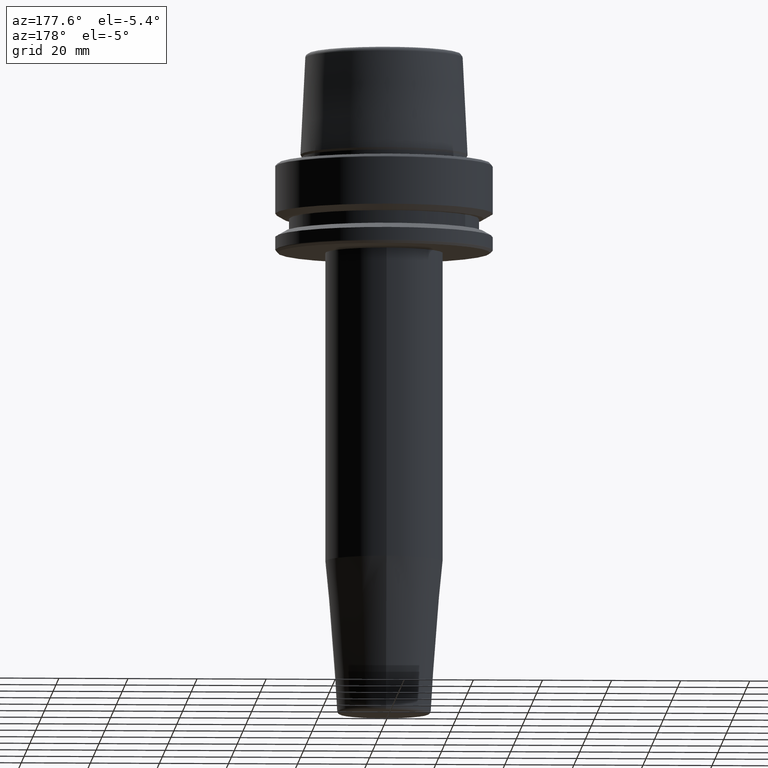
[diagram: clean part render]
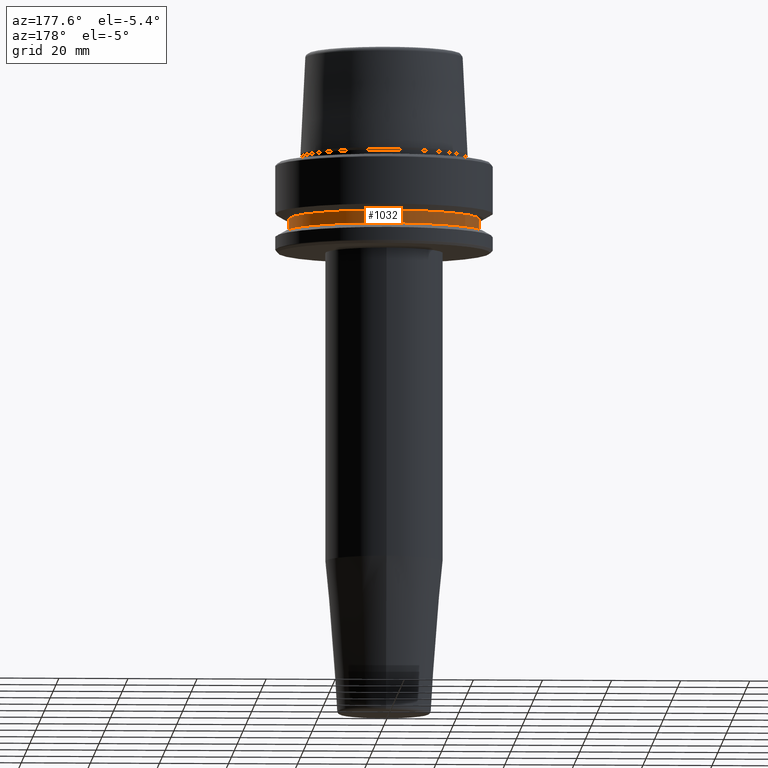
[diagram: same view with one face highlighted and labeled with its STEP entity id]
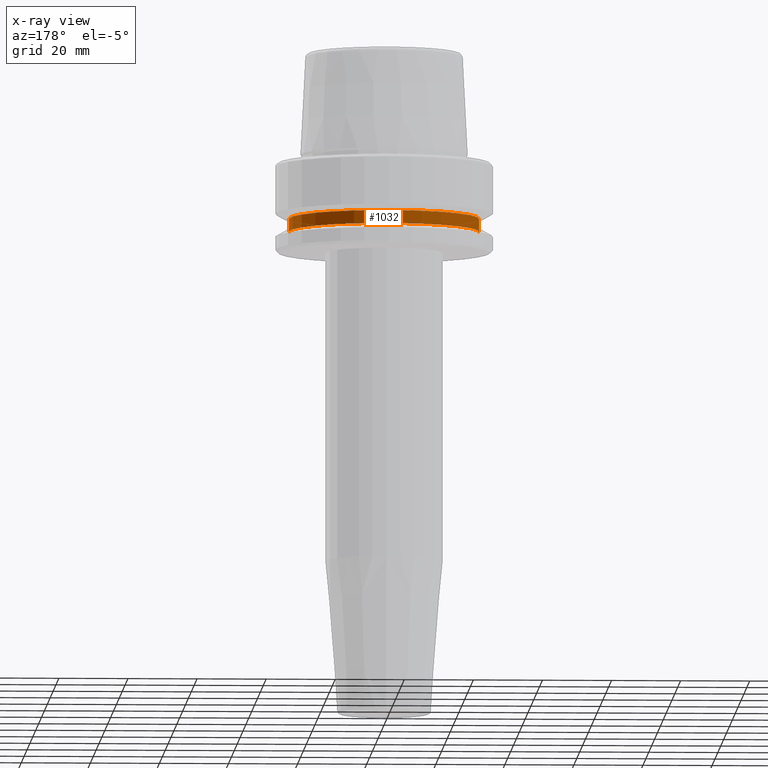
[diagram: x-ray of the same camera — body ghosted, the highlighted face saturated]
A machine part, auxiliary view. The second image highlights one B-rep face of the part: STEP entity #1032.
The next image is the same camera in x-ray: the body ghosted, the highlighted face saturated — about 0% of this face is hidden behind the body in this view.
In plain terms, the highlighted cylindrical surface (partial cylindrical patch) has radius 27.5 mm, axis along (-0, -0, 1).
Its self-contained STEP definition (entity closure, byte-faithful):
#57 = VERTEX_POINT ( 'NONE', #1014 ) ;
#81 = ORIENTED_EDGE ( 'NONE', *, *, #573, .F. ) ;
#185 = AXIS2_PLACEMENT_3D ( 'NONE', #330, #431, #634 ) ;
#194 = LINE ( 'NONE', #804, #1259 ) ;
#285 = CIRCLE ( 'NONE', #454, 27.49999999999999600 ) ;
#315 = DIRECTION ( 'NONE',  ( -0.0000000000000000000, -0.0000000000000000000, 1.000000000000000000 ) ) ;
#323 = DIRECTION ( 'NONE',  ( -0.0000000000000000000, -0.0000000000000000000, 1.000000000000000000 ) ) ;
#330 = CARTESIAN_POINT ( 'NONE',  ( 0.0000000000000000000, 0.0000000000000000000, 78.96908074195309300 ) ) ;
#336 = VERTEX_POINT ( 'NONE', #1011 ) ;
#337 = CARTESIAN_POINT ( 'NONE',  ( 27.49999999999999600, 0.0000000000000000000, -19.90000000000001600 ) ) ;
#409 = EDGE_CURVE ( 'NONE', #633, #1142, #285, .T. ) ;
#411 = CARTESIAN_POINT ( 'NONE',  ( 27.49999999999999600, 0.0000000000000000000, 78.96908074195309300 ) ) ;
#415 = FACE_OUTER_BOUND ( 'NONE', #864, .T. ) ;
#431 = DIRECTION ( 'NONE',  ( -0.0000000000000000000, -0.0000000000000000000, 1.000000000000000000 ) ) ;
#454 = AXIS2_PLACEMENT_3D ( 'NONE', #493, #1101, #772 ) ;
#482 = ORIENTED_EDGE ( 'NONE', *, *, #502, .F. ) ;
#493 = CARTESIAN_POINT ( 'NONE',  ( 0.0000000000000000000, 0.0000000000000000000, -19.90000000000001600 ) ) ;
#502 = EDGE_CURVE ( 'NONE', #336, #57, #992, .T. ) ;
#525 = VECTOR ( 'NONE', #1087, 1000.000000000000000 ) ;
#573 = EDGE_CURVE ( 'NONE', #633, #336, #785, .T. ) ;
#598 = EDGE_CURVE ( 'NONE', #1142, #57, #194, .T. ) ;
#633 = VERTEX_POINT ( 'NONE', #337 ) ;
#634 = DIRECTION ( 'NONE',  ( 1.000000000000000000, 0.0000000000000000000, 0.0000000000000000000 ) ) ;
#670 = CARTESIAN_POINT ( 'NONE',  ( -27.49999999999999600, 3.367778697655220900E-015, -19.90000000000001600 ) ) ;
#772 = DIRECTION ( 'NONE',  ( 1.000000000000000000, 0.0000000000000000000, 0.0000000000000000000 ) ) ;
#773 = ORIENTED_EDGE ( 'NONE', *, *, #409, .T. ) ;
#785 = LINE ( 'NONE', #411, #525 ) ;
#804 = CARTESIAN_POINT ( 'NONE',  ( -27.49999999999999600, 3.367778697655220900E-015, 78.96908074195309300 ) ) ;
#864 = EDGE_LOOP ( 'NONE', ( #773, #1083, #482, #81 ) ) ;
#899 = CARTESIAN_POINT ( 'NONE',  ( 0.0000000000000000000, 0.0000000000000000000, -16.10000000000001600 ) ) ;
#992 = CIRCLE ( 'NONE', #1095, 27.49999999999999600 ) ;
#1001 = DIRECTION ( 'NONE',  ( 1.000000000000000000, 0.0000000000000000000, 0.0000000000000000000 ) ) ;
#1011 = CARTESIAN_POINT ( 'NONE',  ( 27.49999999999999600, 0.0000000000000000000, -16.10000000000001600 ) ) ;
#1014 = CARTESIAN_POINT ( 'NONE',  ( -27.49999999999999600, 3.367778697655220900E-015, -16.10000000000001600 ) ) ;
#1032 = ADVANCED_FACE ( 'NONE', ( #415 ), #1119, .T. ) ;
#1083 = ORIENTED_EDGE ( 'NONE', *, *, #598, .T. ) ;
#1087 = DIRECTION ( 'NONE',  ( -0.0000000000000000000, -0.0000000000000000000, 1.000000000000000000 ) ) ;
#1095 = AXIS2_PLACEMENT_3D ( 'NONE', #899, #323, #1001 ) ;
#1101 = DIRECTION ( 'NONE',  ( -0.0000000000000000000, -0.0000000000000000000, 1.000000000000000000 ) ) ;
#1119 = CYLINDRICAL_SURFACE ( 'NONE', #185, 27.49999999999999600 ) ;
#1142 = VERTEX_POINT ( 'NONE', #670 ) ;
#1259 = VECTOR ( 'NONE', #315, 1000.000000000000000 ) ;